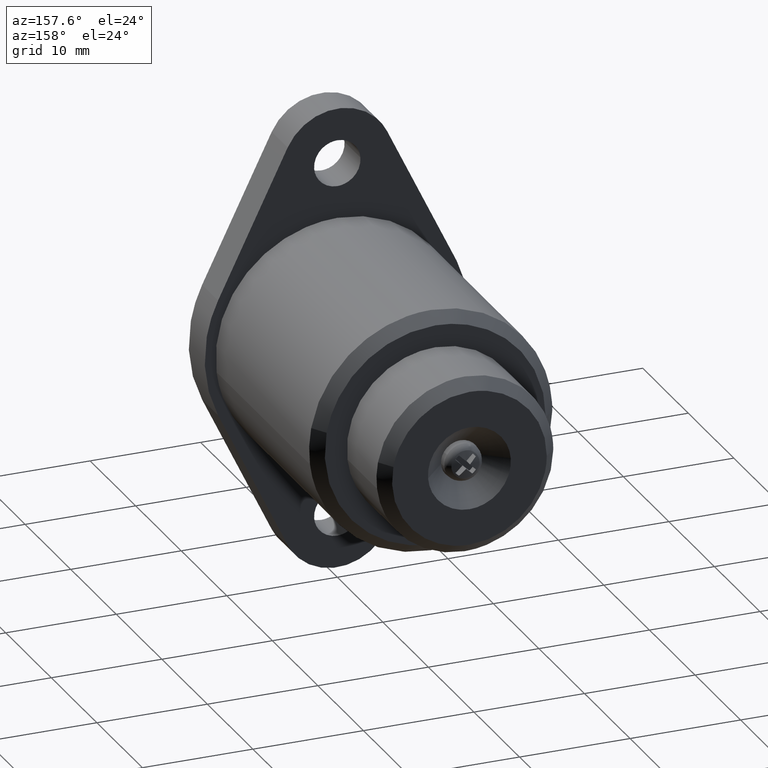
[diagram: clean part render]
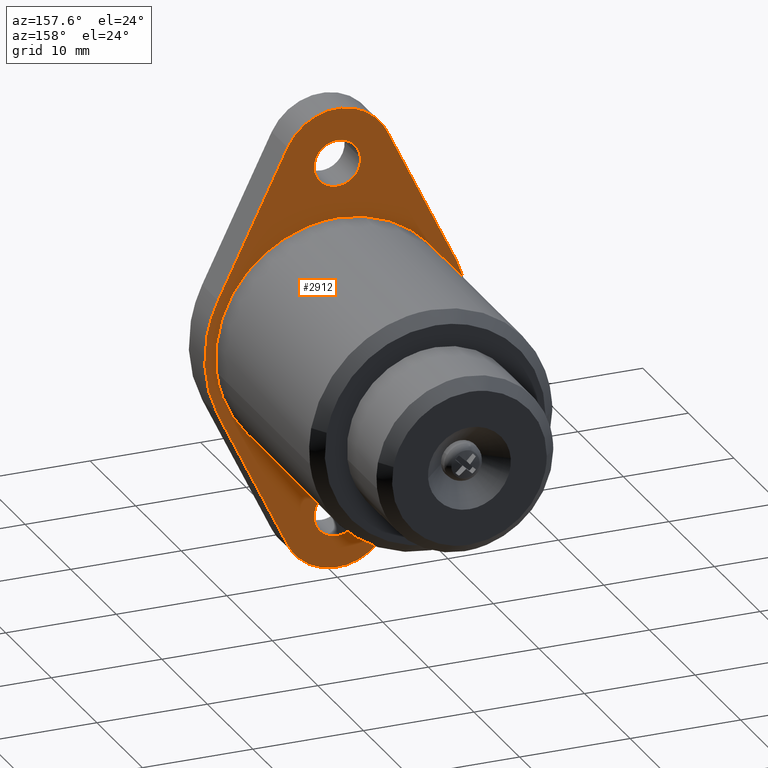
[diagram: same view with one face highlighted and labeled with its STEP entity id]
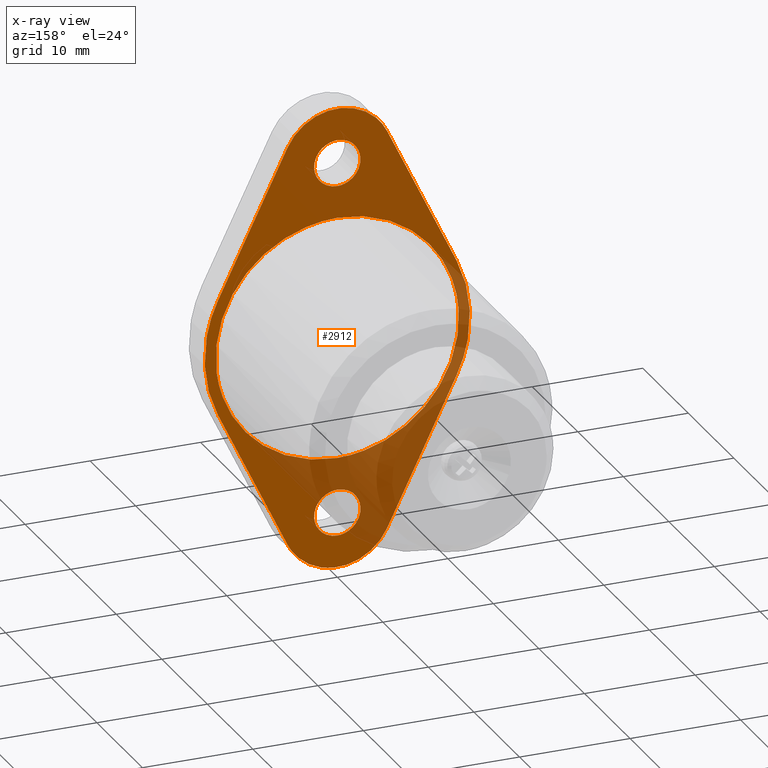
[diagram: x-ray of the same camera — body ghosted, the highlighted face saturated]
A machine part, auxiliary view. The second image highlights one B-rep face of the part: STEP entity #2912.
The next image is the same camera in x-ray: the body ghosted, the highlighted face saturated — about 30% of this face is hidden behind the body in this view.
In plain terms, the highlighted face is a freeform B-spline surface patch.
Its self-contained STEP definition (entity closure, byte-faithful):
#977=CARTESIAN_POINT('',(0.0,0.0,13.900010474177201));
#978=VERTEX_POINT('',#977);
#979=CARTESIAN_POINT('',(2.093526400831510,1.942890E-016,15.835246373046340));
#980=VERTEX_POINT('',#979);
#981=CARTESIAN_POINT('',(0.0,0.0,13.900010474177201));
#982=CARTESIAN_POINT('',(1.941220032291775,0.0,13.900010474177209));
#983=CARTESIAN_POINT('',(2.093526400831510,1.942890E-016,15.835246373046340));
#991=(BOUNDED_CURVE()B_SPLINE_CURVE(2,(#981,#982,#983),.UNSPECIFIED.,.F.,.U.)B_SPLINE_CURVE_WITH_KNOTS((3,3),(0.0,0.236331300616000),.UNSPECIFIED.)CURVE()GEOMETRIC_REPRESENTATION_ITEM()RATIONAL_B_SPLINE_CURVE((1.0,0.723120658624841,0.969723356136823))REPRESENTATION_ITEM(''));
#992=EDGE_CURVE('',#978,#980,#991,.T.);
#994=CARTESIAN_POINT('',(-2.093526400831510,1.942890E-016,16.164774575308059));
#995=VERTEX_POINT('',#994);
#996=CARTESIAN_POINT('',(-2.093526400831511,1.942890E-016,16.164774575308059));
#997=CARTESIAN_POINT('',(-2.100000000000000,0.0,16.082519698996162));
#998=CARTESIAN_POINT('',(-2.100000000000000,0.0,16.000010474177198));
#999=CARTESIAN_POINT('',(-2.100000000000000,0.0,13.900010474177201));
#1000=CARTESIAN_POINT('',(0.0,0.0,13.900010474177201));
#1008=(BOUNDED_CURVE()B_SPLINE_CURVE(2,(#996,#997,#998,#999,#1000),.UNSPECIFIED.,.F.,.U.)B_SPLINE_CURVE_WITH_KNOTS((3,2,3),(0.736331300616000,0.750000000000000,1.0),.UNSPECIFIED.)CURVE()GEOMETRIC_REPRESENTATION_ITEM()RATIONAL_B_SPLINE_CURVE((0.969723356136824,0.983986122561707,1.0,0.707106781186548,1.0))REPRESENTATION_ITEM(''));
#1009=EDGE_CURVE('',#995,#978,#1008,.T.);
#1076=CARTESIAN_POINT('',(0.0,0.0,18.100010474177200));
#1077=VERTEX_POINT('',#1076);
#1078=CARTESIAN_POINT('',(2.093526400831511,1.942890E-016,15.835246373046337));
#1079=CARTESIAN_POINT('',(2.100000000000000,0.0,15.917501249358232));
#1080=CARTESIAN_POINT('',(2.100000000000000,0.0,16.000010474177198));
#1081=CARTESIAN_POINT('',(2.100000000000000,0.0,18.100010474177203));
#1082=CARTESIAN_POINT('',(0.0,0.0,18.100010474177200));
#1090=(BOUNDED_CURVE()B_SPLINE_CURVE(2,(#1078,#1079,#1080,#1081,#1082),.UNSPECIFIED.,.F.,.U.)B_SPLINE_CURVE_WITH_KNOTS((3,2,3),(0.236331300616000,0.250000000000000,0.500000000000000),.UNSPECIFIED.)CURVE()GEOMETRIC_REPRESENTATION_ITEM()RATIONAL_B_SPLINE_CURVE((0.969723356136824,0.983986122561707,1.0,0.707106781186548,1.0))REPRESENTATION_ITEM(''));
#1091=EDGE_CURVE('',#980,#1077,#1090,.T.);
#1125=CARTESIAN_POINT('',(0.0,0.0,18.100010474177200));
#1126=CARTESIAN_POINT('',(-1.941220032291773,0.0,18.100010474177203));
#1127=CARTESIAN_POINT('',(-2.093526400831511,1.942890E-016,16.164774575308059));
#1135=(BOUNDED_CURVE()B_SPLINE_CURVE(2,(#1125,#1126,#1127),.UNSPECIFIED.,.F.,.U.)B_SPLINE_CURVE_WITH_KNOTS((3,3),(0.500000000000000,0.736331300616000),.UNSPECIFIED.)CURVE()GEOMETRIC_REPRESENTATION_ITEM()RATIONAL_B_SPLINE_CURVE((1.0,0.723120658624841,0.969723356136823))REPRESENTATION_ITEM(''));
#1136=EDGE_CURVE('',#1077,#995,#1135,.T.);
#1159=CARTESIAN_POINT('',(0.0,0.0,-18.099989525822998));
#1160=VERTEX_POINT('',#1159);
#1161=CARTESIAN_POINT('',(2.093526400831510,1.942890E-016,-16.164753626953861));
#1162=VERTEX_POINT('',#1161);
#1163=CARTESIAN_POINT('',(0.0,0.0,-18.099989525822998));
#1164=CARTESIAN_POINT('',(1.941220032291773,0.0,-18.099989525822998));
#1165=CARTESIAN_POINT('',(2.093526400831511,1.942890E-016,-16.164753626953857));
#1173=(BOUNDED_CURVE()B_SPLINE_CURVE(2,(#1163,#1164,#1165),.UNSPECIFIED.,.F.,.U.)B_SPLINE_CURVE_WITH_KNOTS((3,3),(0.0,0.236331300616000),.UNSPECIFIED.)CURVE()GEOMETRIC_REPRESENTATION_ITEM()RATIONAL_B_SPLINE_CURVE((1.0,0.723120658624841,0.969723356136823))REPRESENTATION_ITEM(''));
#1174=EDGE_CURVE('',#1160,#1162,#1173,.T.);
#1176=CARTESIAN_POINT('',(-2.093526400831510,1.942890E-016,-15.835225424692140));
#1177=VERTEX_POINT('',#1176);
#1178=CARTESIAN_POINT('',(-2.093526400831511,1.942890E-016,-15.835225424692139));
#1179=CARTESIAN_POINT('',(-2.100000000000000,0.0,-15.917480301004035));
#1180=CARTESIAN_POINT('',(-2.100000000000000,0.0,-15.999989525823000));
#1181=CARTESIAN_POINT('',(-2.100000000000000,0.0,-18.099989525823005));
#1182=CARTESIAN_POINT('',(0.0,0.0,-18.099989525822998));
#1190=(BOUNDED_CURVE()B_SPLINE_CURVE(2,(#1178,#1179,#1180,#1181,#1182),.UNSPECIFIED.,.F.,.U.)B_SPLINE_CURVE_WITH_KNOTS((3,2,3),(0.736331300616000,0.750000000000000,1.0),.UNSPECIFIED.)CURVE()GEOMETRIC_REPRESENTATION_ITEM()RATIONAL_B_SPLINE_CURVE((0.969723356136824,0.983986122561707,1.0,0.707106781186548,1.0))REPRESENTATION_ITEM(''));
#1191=EDGE_CURVE('',#1177,#1160,#1190,.T.);
#1258=CARTESIAN_POINT('',(0.0,0.0,-13.899989525823001));
#1259=VERTEX_POINT('',#1258);
#1260=CARTESIAN_POINT('',(2.093526400831511,1.942890E-016,-16.164753626953857));
#1261=CARTESIAN_POINT('',(2.100000000000000,0.0,-16.082498750641967));
#1262=CARTESIAN_POINT('',(2.100000000000000,0.0,-15.999989525823000));
#1263=CARTESIAN_POINT('',(2.100000000000000,0.0,-13.899989525822999));
#1264=CARTESIAN_POINT('',(0.0,0.0,-13.899989525823001));
#1272=(BOUNDED_CURVE()B_SPLINE_CURVE(2,(#1260,#1261,#1262,#1263,#1264),.UNSPECIFIED.,.F.,.U.)B_SPLINE_CURVE_WITH_KNOTS((3,2,3),(0.236331300616000,0.250000000000000,0.500000000000000),.UNSPECIFIED.)CURVE()GEOMETRIC_REPRESENTATION_ITEM()RATIONAL_B_SPLINE_CURVE((0.969723356136823,0.983986122561707,1.0,0.707106781186548,1.0))REPRESENTATION_ITEM(''));
#1273=EDGE_CURVE('',#1162,#1259,#1272,.T.);
#1307=CARTESIAN_POINT('',(0.0,0.0,-13.899989525823001));
#1308=CARTESIAN_POINT('',(-1.941220032291773,0.0,-13.899989525823003));
#1309=CARTESIAN_POINT('',(-2.093526400831511,1.942890E-016,-15.835225424692135));
#1317=(BOUNDED_CURVE()B_SPLINE_CURVE(2,(#1307,#1308,#1309),.UNSPECIFIED.,.F.,.U.)B_SPLINE_CURVE_WITH_KNOTS((3,3),(0.500000000000000,0.736331300616000),.UNSPECIFIED.)CURVE()GEOMETRIC_REPRESENTATION_ITEM()RATIONAL_B_SPLINE_CURVE((1.0,0.723120658624841,0.969723356136823))REPRESENTATION_ITEM(''));
#1318=EDGE_CURVE('',#1259,#1177,#1317,.T.);
#1909=CARTESIAN_POINT('',(10.923088550968760,-2.402156E-014,-1.298350099039061));
#1910=VERTEX_POINT('',#1909);
#1911=CARTESIAN_POINT('',(-0.000018141802190,0.0,11.000010474177200));
#1912=VERTEX_POINT('',#1911);
#1913=CARTESIAN_POINT('',(10.923088550968760,-2.402156E-014,-1.298350099039061));
#1914=CARTESIAN_POINT('',(10.999981858197811,0.0,-0.651446753374219));
#1915=CARTESIAN_POINT('',(10.999981858197810,0.0,0.000010474177202));
#1916=CARTESIAN_POINT('',(10.999981858197808,0.0,11.000010474177202));
#1917=CARTESIAN_POINT('',(-0.000018141802190,0.0,11.000010474177200));
#1925=(BOUNDED_CURVE()B_SPLINE_CURVE(2,(#1913,#1914,#1915,#1916,#1917),.UNSPECIFIED.,.F.,.U.)B_SPLINE_CURVE_WITH_KNOTS((3,2,3),(0.729562721192991,0.750000000000000,1.0),.UNSPECIFIED.)CURVE()GEOMETRIC_REPRESENTATION_ITEM()RATIONAL_B_SPLINE_CURVE((0.956027239646196,0.976056238505709,1.0,0.707106781186548,1.0))REPRESENTATION_ITEM(''));
#1926=EDGE_CURVE('',#1910,#1912,#1925,.T.);
#1936=CARTESIAN_POINT('',(-10.979501933485819,-3.114176E-014,0.671527910945007));
#1937=VERTEX_POINT('',#1936);
#1943=CARTESIAN_POINT('',(-0.000018141802190,0.0,11.000010474177200));
#1944=CARTESIAN_POINT('',(-10.347800455709654,0.0,11.000010474177202));
#1945=CARTESIAN_POINT('',(-10.979501933485821,-3.114176E-014,0.671527910945007));
#1953=(BOUNDED_CURVE()B_SPLINE_CURVE(2,(#1943,#1944,#1945),.UNSPECIFIED.,.F.,.U.)B_SPLINE_CURVE_WITH_KNOTS((3,3),(0.0,0.239333221516243),.UNSPECIFIED.)CURVE()GEOMETRIC_REPRESENTATION_ITEM()RATIONAL_B_SPLINE_CURVE((1.0,0.719603689524458,0.976072597347958))REPRESENTATION_ITEM(''));
#1954=EDGE_CURVE('',#1912,#1937,#1953,.T.);
#1981=CARTESIAN_POINT('',(-0.000018141802190,0.0,-10.999989525822800));
#1982=VERTEX_POINT('',#1981);
#1983=CARTESIAN_POINT('',(-0.000018141802190,0.0,-10.999989525822800));
#1984=CARTESIAN_POINT('',(9.769916062458439,0.0,-10.999989525822796));
#1985=CARTESIAN_POINT('',(10.923088550968760,-2.402156E-014,-1.298350099039061));
#1993=(BOUNDED_CURVE()B_SPLINE_CURVE(2,(#1983,#1984,#1985),.UNSPECIFIED.,.F.,.U.)B_SPLINE_CURVE_WITH_KNOTS((3,3),(0.500000000000000,0.729562721192991),.UNSPECIFIED.)CURVE()GEOMETRIC_REPRESENTATION_ITEM()RATIONAL_B_SPLINE_CURVE((1.0,0.731050542680839,0.956027239646196))REPRESENTATION_ITEM(''));
#1994=EDGE_CURVE('',#1982,#1910,#1993,.T.);
#1996=CARTESIAN_POINT('',(-10.979501933485821,-3.114176E-014,0.671527910945007));
#1997=CARTESIAN_POINT('',(-11.000018141802192,0.0,0.336082598275263));
#1998=CARTESIAN_POINT('',(-11.000018141802190,0.0,0.000010474177202));
#1999=CARTESIAN_POINT('',(-11.000018141802190,0.0,-10.999989525822796));
#2000=CARTESIAN_POINT('',(-0.000018141802190,0.0,-10.999989525822800));
#2008=(BOUNDED_CURVE()B_SPLINE_CURVE(2,(#1996,#1997,#1998,#1999,#2000),.UNSPECIFIED.,.F.,.U.)B_SPLINE_CURVE_WITH_KNOTS((3,2,3),(0.239333221516243,0.250000000000000,0.500000000000000),.UNSPECIFIED.)CURVE()GEOMETRIC_REPRESENTATION_ITEM()RATIONAL_B_SPLINE_CURVE((0.976072597347958,0.987503091662090,1.0,0.707106781186548,1.0))REPRESENTATION_ITEM(''));
#2009=EDGE_CURVE('',#1937,#1982,#2008,.T.);
#2795=CARTESIAN_POINT('',(-13.198799948659721,0.0,-23.097886372787670));
#2796=CARTESIAN_POINT('',(13.198800596984020,0.0,-23.097886372787670));
#2797=CARTESIAN_POINT('',(-13.198799948659721,0.0,23.097908226183140));
#2798=CARTESIAN_POINT('',(13.198800596984020,0.0,23.097908226183140));
#2799=B_SPLINE_SURFACE_WITH_KNOTS('',1,1,((#2795,#2797),(#2796,#2798)),.UNSPECIFIED.,.F.,.F.,.U.,(2,2),(2,2),(0.0,26.397600545643741),(0.0,46.195794598970807),.UNSPECIFIED.);
#2800=CARTESIAN_POINT('',(10.787798958201421,0.0,5.255806668611340));
#2801=VERTEX_POINT('',#2800);
#2802=CARTESIAN_POINT('',(4.496091968056815,0.0,18.187510648982901));
#2803=VERTEX_POINT('',#2802);
#2804=CARTESIAN_POINT('',(10.787798958201421,0.0,5.255806668611340));
#2805=CARTESIAN_POINT('',(4.496091968056815,0.0,18.187510648982901));
#2806=QUASI_UNIFORM_CURVE('',1,(#2804,#2805),.UNSPECIFIED.,.F.,.U.);
#2807=EDGE_CURVE('',#2801,#2803,#2806,.T.);
#2808=ORIENTED_EDGE('',*,*,#2807,.F.);
#2809=CARTESIAN_POINT('',(10.787798958201421,0.0,-5.255785720256941));
#2810=VERTEX_POINT('',#2809);
#2811=CARTESIAN_POINT('',(10.787798958201421,0.0,-5.255785720256941));
#2812=CARTESIAN_POINT('',(13.348413384226454,0.0,0.000010474177197));
#2813=CARTESIAN_POINT('',(10.787798958201421,0.0,5.255806668611339));
#2821=(BOUNDED_CURVE()B_SPLINE_CURVE(2,(#2811,#2812,#2813),.UNSPECIFIED.,.F.,.U.)CURVE()GEOMETRIC_REPRESENTATION_ITEM()QUASI_UNIFORM_CURVE()RATIONAL_B_SPLINE_CURVE((1.0,0.898983246516785,1.0))REPRESENTATION_ITEM(''));
#2822=EDGE_CURVE('',#2810,#2801,#2821,.T.);
#2823=ORIENTED_EDGE('',*,*,#2822,.F.);
#2824=CARTESIAN_POINT('',(4.496091968056811,0.0,-18.187489700628699));
#2825=VERTEX_POINT('',#2824);
#2826=CARTESIAN_POINT('',(4.496091968056811,0.0,-18.187489700628699));
#2827=CARTESIAN_POINT('',(10.787798958201421,0.0,-5.255785720256941));
#2828=QUASI_UNIFORM_CURVE('',1,(#2826,#2827),.UNSPECIFIED.,.F.,.U.);
#2829=EDGE_CURVE('',#2825,#2810,#2828,.T.);
#2830=ORIENTED_EDGE('',*,*,#2829,.F.);
#2831=CARTESIAN_POINT('',(-4.500998218868420,0.0,-18.177376729271948));
#2832=VERTEX_POINT('',#2831);
#2833=CARTESIAN_POINT('',(-4.500998218868427,0.0,-18.177376729271948));
#2834=CARTESIAN_POINT('',(-3.137245260664916,0.0,-20.996466336360509));
#2835=CARTESIAN_POINT('',(-0.005620130930169,0.0,-20.999986367234840));
#2836=CARTESIAN_POINT('',(3.126004998804582,0.0,-21.003506398109160));
#2837=CARTESIAN_POINT('',(4.496091968056818,0.0,-18.187489700628699));
#2845=(BOUNDED_CURVE()B_SPLINE_CURVE(2,(#2833,#2834,#2835,#2836,#2837),.UNSPECIFIED.,.F.,.U.)B_SPLINE_CURVE_WITH_KNOTS((3,2,3),(0.0,0.500000000000000,1.0),.UNSPECIFIED.)CURVE()GEOMETRIC_REPRESENTATION_ITEM()RATIONAL_B_SPLINE_CURVE((1.0,0.847493071819255,1.0,0.847493071819255,1.0))REPRESENTATION_ITEM(''));
#2846=EDGE_CURVE('',#2832,#2825,#2845,.T.);
#2847=ORIENTED_EDGE('',*,*,#2846,.F.);
#2848=CARTESIAN_POINT('',(-10.790620998225720,0.0,-5.249989380360920));
#2849=VERTEX_POINT('',#2848);
#2850=CARTESIAN_POINT('',(-10.790620998225720,0.0,-5.249989380360920));
#2851=CARTESIAN_POINT('',(-4.500998218868420,0.0,-18.177376729271948));
#2852=QUASI_UNIFORM_CURVE('',1,(#2850,#2851),.UNSPECIFIED.,.F.,.U.);
#2853=EDGE_CURVE('',#2849,#2832,#2852,.T.);
#2854=ORIENTED_EDGE('',*,*,#2853,.F.);
#2855=CARTESIAN_POINT('',(-10.793442322338519,0.0,5.244207537060281));
#2856=VERTEX_POINT('',#2855);
#2857=CARTESIAN_POINT('',(-10.793442322338519,0.0,5.244207537060291));
#2858=CARTESIAN_POINT('',(-13.343177088879154,0.0,-0.003576787197686));
#2859=CARTESIAN_POINT('',(-10.790620998225711,0.0,-5.249989380360921));
#2867=(BOUNDED_CURVE()B_SPLINE_CURVE(2,(#2857,#2858,#2859),.UNSPECIFIED.,.F.,.U.)CURVE()GEOMETRIC_REPRESENTATION_ITEM()QUASI_UNIFORM_CURVE()RATIONAL_B_SPLINE_CURVE((1.0,0.899336004191385,1.0))REPRESENTATION_ITEM(''));
#2868=EDGE_CURVE('',#2856,#2849,#2867,.T.);
#2869=ORIENTED_EDGE('',*,*,#2868,.F.);
#2870=CARTESIAN_POINT('',(-4.496091968056815,0.0,18.187510648982901));
#2871=VERTEX_POINT('',#2870);
#2872=CARTESIAN_POINT('',(-4.496091968056815,0.0,18.187510648982901));
#2873=CARTESIAN_POINT('',(-10.793442322338519,0.0,5.244207537060281));
#2874=QUASI_UNIFORM_CURVE('',1,(#2872,#2873),.UNSPECIFIED.,.F.,.U.);
#2875=EDGE_CURVE('',#2871,#2856,#2874,.T.);
#2876=ORIENTED_EDGE('',*,*,#2875,.F.);
#2877=CARTESIAN_POINT('',(4.496091968056816,0.0,18.187510648982901));
#2878=CARTESIAN_POINT('',(3.127716075623161,0.0,21.000010474177206));
#2879=CARTESIAN_POINT('',(0.0,0.0,21.000010474177198));
#2880=CARTESIAN_POINT('',(-3.127716075623161,0.0,21.000010474177206));
#2881=CARTESIAN_POINT('',(-4.496091968056816,0.0,18.187510648982901));
#2889=(BOUNDED_CURVE()B_SPLINE_CURVE(2,(#2877,#2878,#2879,#2880,#2881),.UNSPECIFIED.,.F.,.U.)B_SPLINE_CURVE_WITH_KNOTS((3,2,3),(0.0,0.500000000000000,1.0),.UNSPECIFIED.)CURVE()GEOMETRIC_REPRESENTATION_ITEM()RATIONAL_B_SPLINE_CURVE((1.0,0.847791258200137,1.0,0.847791258200137,1.0))REPRESENTATION_ITEM(''));
#2890=EDGE_CURVE('',#2803,#2871,#2889,.T.);
#2891=ORIENTED_EDGE('',*,*,#2890,.F.);
#2892=EDGE_LOOP('',(#2808,#2823,#2830,#2847,#2854,#2869,#2876,#2891));
#2893=FACE_OUTER_BOUND('',#2892,.T.);
#2894=ORIENTED_EDGE('',*,*,#1954,.T.);
#2895=ORIENTED_EDGE('',*,*,#2009,.T.);
#2896=ORIENTED_EDGE('',*,*,#1994,.T.);
#2897=ORIENTED_EDGE('',*,*,#1926,.T.);
#2898=EDGE_LOOP('',(#2894,#2895,#2896,#2897));
#2899=FACE_BOUND('',#2898,.T.);
#2900=ORIENTED_EDGE('',*,*,#1318,.T.);
#2901=ORIENTED_EDGE('',*,*,#1191,.T.);
#2902=ORIENTED_EDGE('',*,*,#1174,.T.);
#2903=ORIENTED_EDGE('',*,*,#1273,.T.);
#2904=EDGE_LOOP('',(#2900,#2901,#2902,#2903));
#2905=FACE_BOUND('',#2904,.T.);
#2906=ORIENTED_EDGE('',*,*,#1136,.T.);
#2907=ORIENTED_EDGE('',*,*,#1009,.T.);
#2908=ORIENTED_EDGE('',*,*,#992,.T.);
#2909=ORIENTED_EDGE('',*,*,#1091,.T.);
#2910=EDGE_LOOP('',(#2906,#2907,#2908,#2909));
#2911=FACE_BOUND('',#2910,.T.);
#2912=ADVANCED_FACE('',(#2893,#2899,#2905,#2911),#2799,.F.);